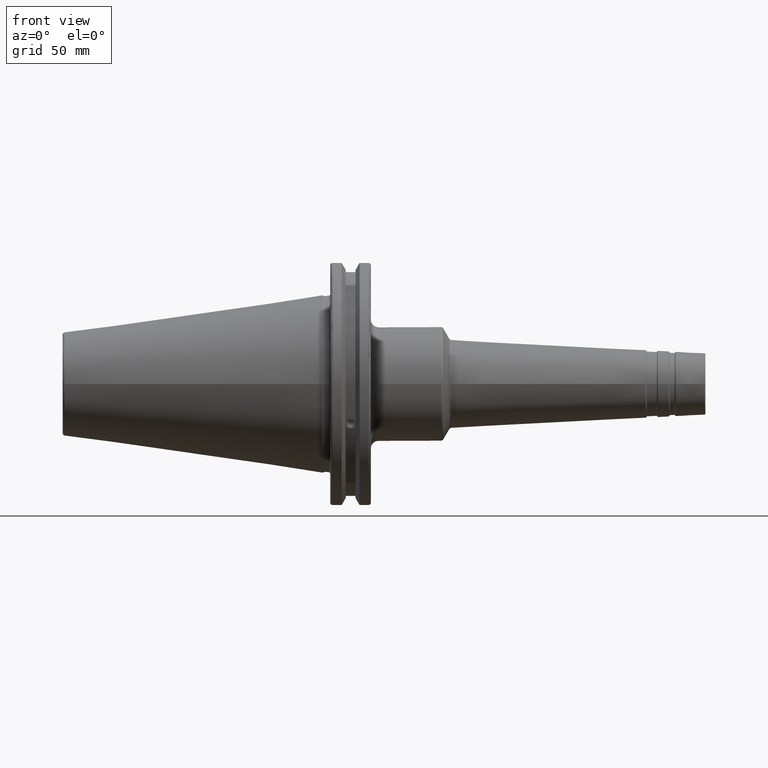
[diagram: clean part render]
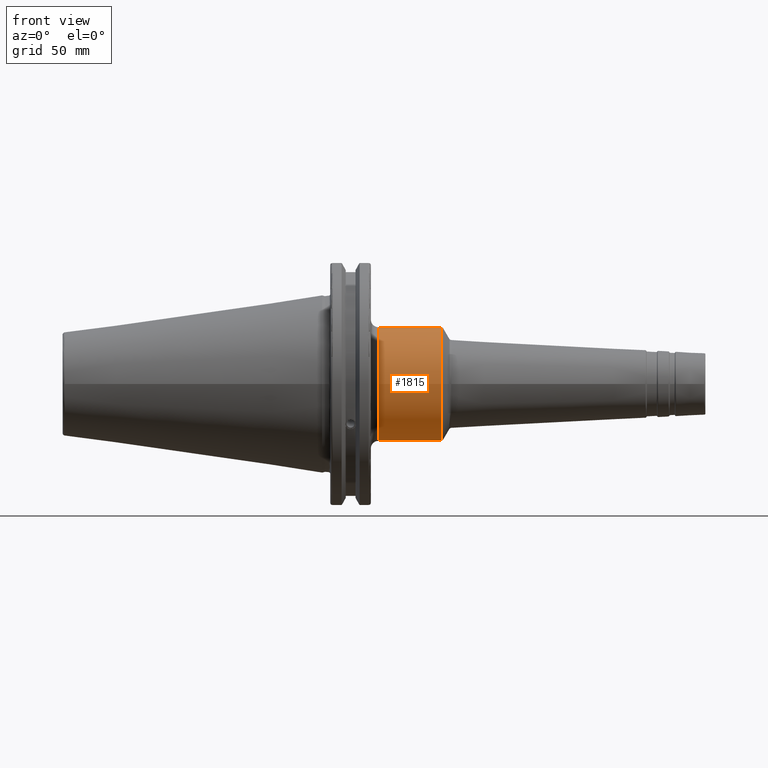
[diagram: same view with one face highlighted and labeled with its STEP entity id]
A machine part, front view. The second image highlights one B-rep face of the part: STEP entity #1815.
In plain terms, the highlighted cylindrical surface (bore or boss wall) has radius 22.25 mm, axis along (1, 0, 0).
Its self-contained STEP definition (entity closure, byte-faithful):
#151=LINE('',#2770,#254);
#254=VECTOR('',#2196,22.25);
#357=CYLINDRICAL_SURFACE('',#1949,22.25);
#386=FACE_OUTER_BOUND('',#493,.T.);
#493=EDGE_LOOP('',(#1228,#1229,#1230,#1231,#1232,#1233));
#619=CIRCLE('',#1945,22.25);
#622=CIRCLE('',#1948,22.25);
#623=CIRCLE('',#1950,22.25);
#624=CIRCLE('',#1951,22.25);
#746=VERTEX_POINT('',#2759);
#747=VERTEX_POINT('',#2760);
#749=VERTEX_POINT('',#2767);
#750=VERTEX_POINT('',#2768);
#937=EDGE_CURVE('',#746,#747,#619,.T.);
#940=EDGE_CURVE('',#747,#746,#622,.T.);
#941=EDGE_CURVE('',#749,#750,#623,.T.);
#942=EDGE_CURVE('',#749,#746,#151,.T.);
#943=EDGE_CURVE('',#750,#749,#624,.T.);
#1228=ORIENTED_EDGE('',*,*,#941,.F.);
#1229=ORIENTED_EDGE('',*,*,#942,.T.);
#1230=ORIENTED_EDGE('',*,*,#940,.F.);
#1231=ORIENTED_EDGE('',*,*,#937,.F.);
#1232=ORIENTED_EDGE('',*,*,#942,.F.);
#1233=ORIENTED_EDGE('',*,*,#943,.F.);
#1815=ADVANCED_FACE('',(#386),#357,.T.);
#1945=AXIS2_PLACEMENT_3D('',#2761,#2184,#2185);
#1948=AXIS2_PLACEMENT_3D('',#2765,#2190,#2191);
#1949=AXIS2_PLACEMENT_3D('',#2766,#2192,#2193);
#1950=AXIS2_PLACEMENT_3D('',#2769,#2194,#2195);
#1951=AXIS2_PLACEMENT_3D('',#2771,#2197,#2198);
#2184=DIRECTION('center_axis',(-1.,0.,0.));
#2185=DIRECTION('ref_axis',(0.,-1.,-1.22464679914735E-16));
#2190=DIRECTION('center_axis',(-1.,0.,0.));
#2191=DIRECTION('ref_axis',(0.,-1.,-1.22464679914735E-16));
#2192=DIRECTION('center_axis',(1.,0.,0.));
#2193=DIRECTION('ref_axis',(0.,1.,0.));
#2194=DIRECTION('center_axis',(1.,0.,0.));
#2195=DIRECTION('ref_axis',(0.,-1.,1.83697019872103E-16));
#2196=DIRECTION('',(-1.,0.,0.));
#2197=DIRECTION('center_axis',(1.,0.,0.));
#2198=DIRECTION('ref_axis',(0.,-1.,1.83697019872103E-16));
#2759=CARTESIAN_POINT('',(22.05,-22.25,-2.72483912810286E-15));
#2760=CARTESIAN_POINT('',(22.05,-2.72483912810286E-15,-22.25));
#2761=CARTESIAN_POINT('Origin',(22.05,0.,0.));
#2765=CARTESIAN_POINT('Origin',(22.05,0.,0.));
#2766=CARTESIAN_POINT('Origin',(33.0789621442379,0.,0.));
#2767=CARTESIAN_POINT('',(46.5305740192861,-22.25,-2.72483912810286E-15));
#2768=CARTESIAN_POINT('',(46.5305740192861,-2.72483912810286E-15,22.25));
#2769=CARTESIAN_POINT('Origin',(46.5305740192861,0.,0.));
#2770=CARTESIAN_POINT('',(33.0789621442379,-22.25,-2.72483912810286E-15));
#2771=CARTESIAN_POINT('Origin',(46.5305740192861,0.,0.));